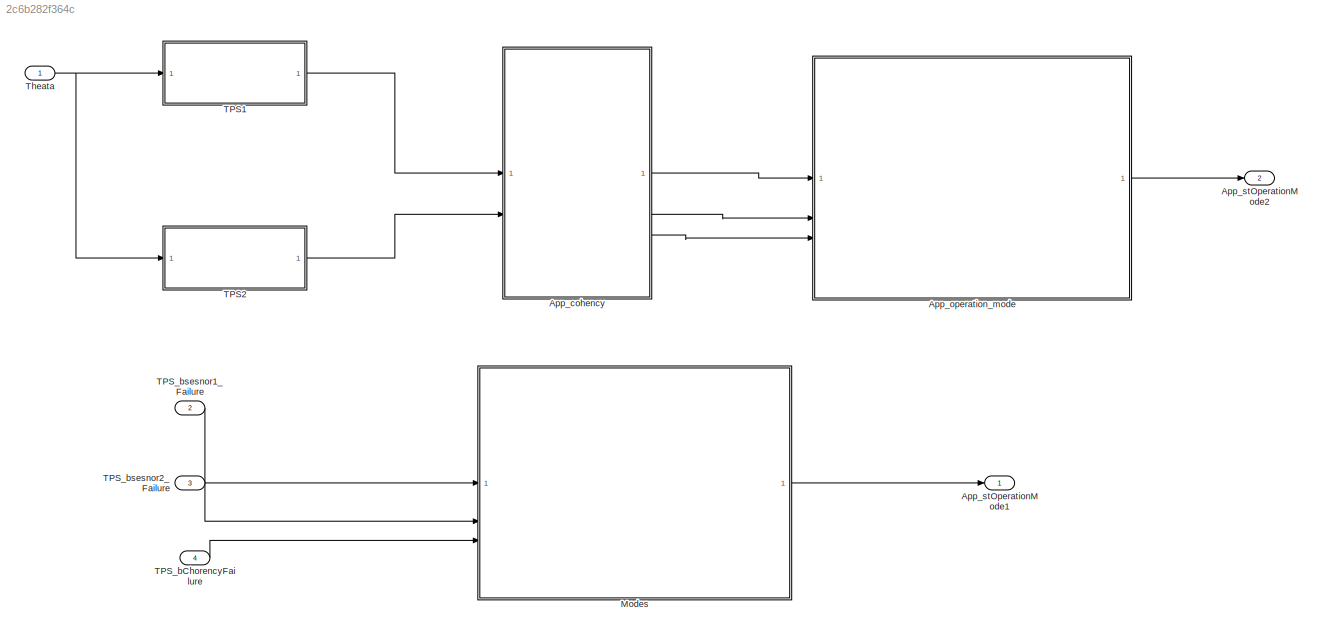
MODEL slx_2c6b282f364c
KIND model
CONFIG AbsTol = auto
CONFIG EnableMultiTasking = on
CONFIG FixedStep = 0.01
CONFIG MaxStep = auto
CONFIG MinStep = auto
CONFIG RelTol = 1e-3
CONFIG SampleTimeConstraint = Unconstrained
CONFIG SolverName = FixedStepAuto
CONFIG StartTime = 0.0
CONFIG StopTime = 10.0
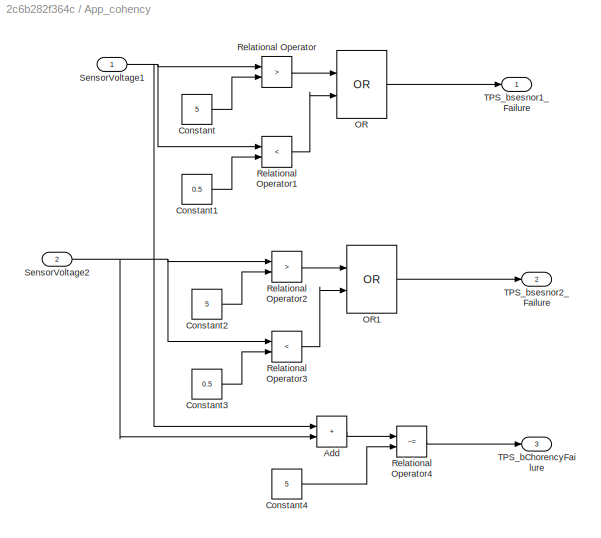
BLOCK [SubSystem] App_cohency
BLOCK [Sum] App_cohency/Add
  IconShape = rectangular
BLOCK [Constant] App_cohency/Constant
  Value = 5
BLOCK [Constant] App_cohency/Constant1
  Value = 0.5
BLOCK [Constant] App_cohency/Constant2
  Value = 5
BLOCK [Constant] App_cohency/Constant3
  Value = 0.5
BLOCK [Constant] App_cohency/Constant4
  Value = 5
BLOCK [Logic] App_cohency/OR
  AllPortsSameDT = off
  IconShape = distinctive
  Operator = OR
  OutDataTypeStr = boolean
BLOCK [Logic] App_cohency/OR1
  AllPortsSameDT = off
  IconShape = distinctive
  Operator = OR
  OutDataTypeStr = boolean
BLOCK [RelationalOperator] App_cohency/Relational Operator
  InputSameDT = off
  Operator = >
  OutDataTypeStr = boolean
  RndMeth = Simplest
BLOCK [RelationalOperator] App_cohency/Relational Operator1
  InputSameDT = off
  Operator = <
  OutDataTypeStr = boolean
  RndMeth = Simplest
BLOCK [RelationalOperator] App_cohency/Relational Operator2
  InputSameDT = off
  Operator = >
  OutDataTypeStr = boolean
  RndMeth = Simplest
BLOCK [RelationalOperator] App_cohency/Relational Operator3
  InputSameDT = off
  Operator = <
  OutDataTypeStr = boolean
  RndMeth = Simplest
BLOCK [RelationalOperator] App_cohency/Relational Operator4
  InputSameDT = off
  Operator = ~=
  OutDataTypeStr = boolean
  RndMeth = Simplest
BLOCK [Inport] App_cohency/SensorVoltage1
BLOCK [Inport] App_cohency/SensorVoltage2
  Port = 2
BLOCK [Outport] App_cohency/TPS_bChorencyFailure
  Port = 3
BLOCK [Outport] App_cohency/TPS_bsesnor1_Failure
BLOCK [Outport] App_cohency/TPS_bsesnor2_Failure
  Port = 2
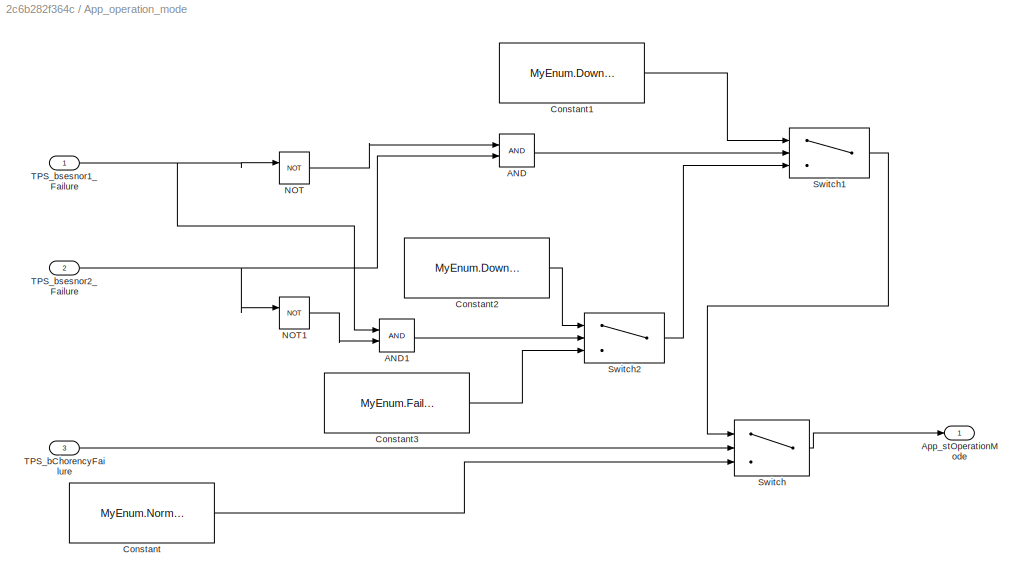
BLOCK [SubSystem] App_operation_mode
BLOCK [Logic] App_operation_mode/AND
  AllPortsSameDT = off
  OutDataTypeStr = boolean
BLOCK [Logic] App_operation_mode/AND1
  AllPortsSameDT = off
  OutDataTypeStr = boolean
BLOCK [Outport] App_operation_mode/App_stOperationMode
  OutDataTypeStr = Enum: MyEnum
BLOCK [Constant] App_operation_mode/Constant
  Value = MyEnum.Normal
BLOCK [Constant] App_operation_mode/Constant1
  Value = MyEnum.DowngradedS1
BLOCK [Constant] App_operation_mode/Constant2
  Value = MyEnum.DowngradedS2
BLOCK [Constant] App_operation_mode/Constant3
  Value = MyEnum.Failure
BLOCK [Logic] App_operation_mode/NOT
  AllPortsSameDT = off
  IconShape = distinctive
  Operator = NOT
  OutDataTypeStr = boolean
BLOCK [Logic] App_operation_mode/NOT1
  AllPortsSameDT = off
  IconShape = distinctive
  Operator = NOT
  OutDataTypeStr = boolean
BLOCK [Switch] App_operation_mode/Switch
  Criteria = u2 ~= 0
  InputSameDT = off
  SaturateOnIntegerOverflow = off
BLOCK [Switch] App_operation_mode/Switch1
  Criteria = u2 ~= 0
  InputSameDT = off
  SaturateOnIntegerOverflow = off
BLOCK [Switch] App_operation_mode/Switch2
  Criteria = u2 ~= 0
  InputSameDT = off
  SaturateOnIntegerOverflow = off
BLOCK [Inport] App_operation_mode/TPS_bChorencyFailure
  Port = 3
BLOCK [Inport] App_operation_mode/TPS_bsesnor1_Failure
BLOCK [Inport] App_operation_mode/TPS_bsesnor2_Failure
  Port = 2
BLOCK [Outport] App_stOperationMode1
BLOCK [Outport] App_stOperationMode2
  Port = 2
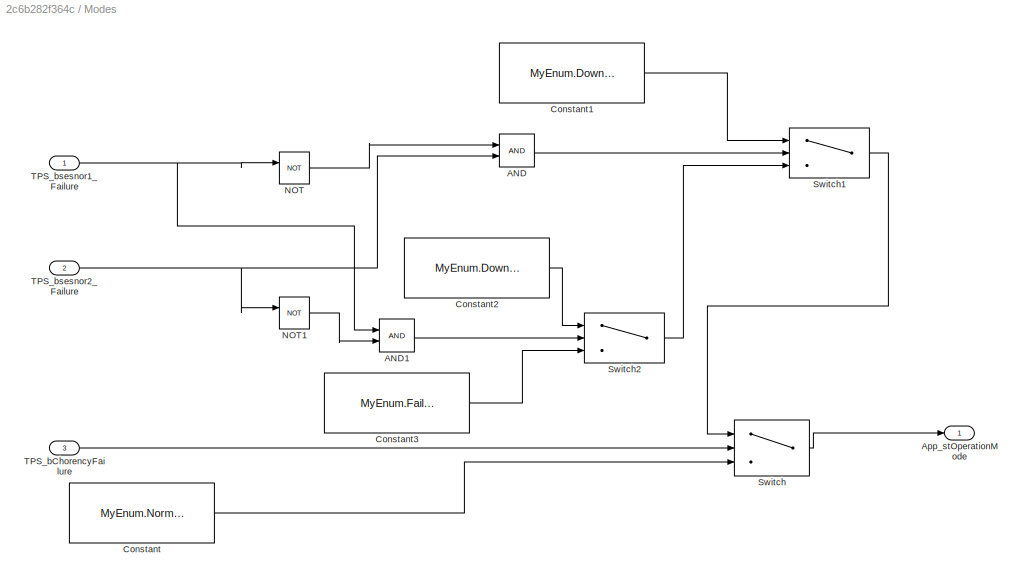
BLOCK [SubSystem] Modes
BLOCK [Logic] Modes/AND
  AllPortsSameDT = off
  OutDataTypeStr = boolean
BLOCK [Logic] Modes/AND1
  AllPortsSameDT = off
  OutDataTypeStr = boolean
BLOCK [Outport] Modes/App_stOperationMode
  OutDataTypeStr = Enum: MyEnum
BLOCK [Constant] Modes/Constant
  Value = MyEnum.Normal
BLOCK [Constant] Modes/Constant1
  Value = MyEnum.DowngradedS1
BLOCK [Constant] Modes/Constant2
  Value = MyEnum.DowngradedS2
BLOCK [Constant] Modes/Constant3
  Value = MyEnum.Failure
BLOCK [Logic] Modes/NOT
  AllPortsSameDT = off
  IconShape = distinctive
  Operator = NOT
  OutDataTypeStr = boolean
BLOCK [Logic] Modes/NOT1
  AllPortsSameDT = off
  IconShape = distinctive
  Operator = NOT
  OutDataTypeStr = boolean
BLOCK [Switch] Modes/Switch
  Criteria = u2 ~= 0
  InputSameDT = off
  SaturateOnIntegerOverflow = off
BLOCK [Switch] Modes/Switch1
  Criteria = u2 ~= 0
  InputSameDT = off
  SaturateOnIntegerOverflow = off
BLOCK [Switch] Modes/Switch2
  Criteria = u2 ~= 0
  InputSameDT = off
  SaturateOnIntegerOverflow = off
BLOCK [Inport] Modes/TPS_bChorencyFailure
  Port = 3
BLOCK [Inport] Modes/TPS_bsesnor1_Failure
BLOCK [Inport] Modes/TPS_bsesnor2_Failure
  Port = 2
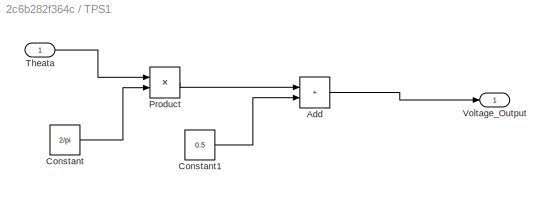
BLOCK [SubSystem] TPS1
BLOCK [Sum] TPS1/Add
  IconShape = rectangular
BLOCK [Constant] TPS1/Constant
  Value = 2/pi
BLOCK [Constant] TPS1/Constant1
  Value = 0.5
BLOCK [Product] TPS1/Product
BLOCK [Inport] TPS1/Theata
BLOCK [Outport] TPS1/Voltage_Output
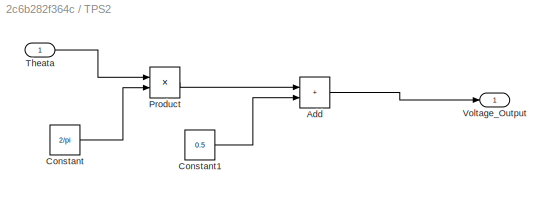
BLOCK [SubSystem] TPS2
BLOCK [Sum] TPS2/Add
  IconShape = rectangular
BLOCK [Constant] TPS2/Constant
  Value = 2/pi
BLOCK [Constant] TPS2/Constant1
  Value = 0.5
BLOCK [Product] TPS2/Product
BLOCK [Inport] TPS2/Theata
BLOCK [Outport] TPS2/Voltage_Output
BLOCK [Inport] TPS_bChorencyFailure
  Port = 4
BLOCK [Inport] TPS_bsesnor1_Failure
  Port = 2
BLOCK [Inport] TPS_bsesnor2_Failure
  Port = 3
BLOCK [Inport] Theata
LINE App_cohency/Add:1 -> App_cohency/Relational Operator4:1
LINE App_cohency/Constant1:1 -> App_cohency/Relational Operator1:2
LINE App_cohency/Constant2:1 -> App_cohency/Relational Operator2:2
LINE App_cohency/Constant3:1 -> App_cohency/Relational Operator3:2
LINE App_cohency/Constant4:1 -> App_cohency/Relational Operator4:2
LINE App_cohency/Constant:1 -> App_cohency/Relational Operator:2
LINE App_cohency/OR1:1 -> App_cohency/TPS_bsesnor2_Failure:1
LINE App_cohency/OR:1 -> App_cohency/TPS_bsesnor1_Failure:1
LINE App_cohency/Relational Operator1:1 -> App_cohency/OR:2
LINE App_cohency/Relational Operator2:1 -> App_cohency/OR1:1
LINE App_cohency/Relational Operator3:1 -> App_cohency/OR1:2
LINE App_cohency/Relational Operator4:1 -> App_cohency/TPS_bChorencyFailure:1
LINE App_cohency/Relational Operator:1 -> App_cohency/OR:1
NET App_cohency/SensorVoltage1:1 -> App_cohency/Add:1, App_cohency/Relational Operator1:1, App_cohency/Relational Operator:1
NET App_cohency/SensorVoltage2:1 -> App_cohency/Add:2, App_cohency/Relational Operator2:1, App_cohency/Relational Operator3:1
LINE App_cohency:1 -> App_operation_mode:1
LINE App_cohency:2 -> App_operation_mode:2
LINE App_cohency:3 -> App_operation_mode:3
LINE App_operation_mode/AND1:1 -> App_operation_mode/Switch2:2
LINE App_operation_mode/AND:1 -> App_operation_mode/Switch1:2
LINE App_operation_mode/Constant1:1 -> App_operation_mode/Switch1:1
LINE App_operation_mode/Constant2:1 -> App_operation_mode/Switch2:1
LINE App_operation_mode/Constant3:1 -> App_operation_mode/Switch2:3
LINE App_operation_mode/Constant:1 -> App_operation_mode/Switch:3
LINE App_operation_mode/NOT1:1 -> App_operation_mode/AND1:2
LINE App_operation_mode/NOT:1 -> App_operation_mode/AND:1
LINE App_operation_mode/Switch1:1 -> App_operation_mode/Switch:1
LINE App_operation_mode/Switch2:1 -> App_operation_mode/Switch1:3
LINE App_operation_mode/Switch:1 -> App_operation_mode/App_stOperationMode:1
LINE App_operation_mode/TPS_bChorencyFailure:1 -> App_operation_mode/Switch:2
NET App_operation_mode/TPS_bsesnor1_Failure:1 -> App_operation_mode/AND1:1, App_operation_mode/NOT:1
NET App_operation_mode/TPS_bsesnor2_Failure:1 -> App_operation_mode/AND:2, App_operation_mode/NOT1:1
LINE App_operation_mode:1 -> App_stOperationMode2:1
LINE Modes/AND1:1 -> Modes/Switch2:2
LINE Modes/AND:1 -> Modes/Switch1:2
LINE Modes/Constant1:1 -> Modes/Switch1:1
LINE Modes/Constant2:1 -> Modes/Switch2:1
LINE Modes/Constant3:1 -> Modes/Switch2:3
LINE Modes/Constant:1 -> Modes/Switch:3
LINE Modes/NOT1:1 -> Modes/AND1:2
LINE Modes/NOT:1 -> Modes/AND:1
LINE Modes/Switch1:1 -> Modes/Switch:1
LINE Modes/Switch2:1 -> Modes/Switch1:3
LINE Modes/Switch:1 -> Modes/App_stOperationMode:1
LINE Modes/TPS_bChorencyFailure:1 -> Modes/Switch:2
NET Modes/TPS_bsesnor1_Failure:1 -> Modes/AND1:1, Modes/NOT:1
NET Modes/TPS_bsesnor2_Failure:1 -> Modes/AND:2, Modes/NOT1:1
LINE Modes:1 -> App_stOperationMode1:1
LINE TPS1/Add:1 -> TPS1/Voltage_Output:1
LINE TPS1/Constant1:1 -> TPS1/Add:2
LINE TPS1/Constant:1 -> TPS1/Product:2
LINE TPS1/Product:1 -> TPS1/Add:1
LINE TPS1/Theata:1 -> TPS1/Product:1
LINE TPS1:1 -> App_cohency:1
LINE TPS2/Add:1 -> TPS2/Voltage_Output:1
LINE TPS2/Constant1:1 -> TPS2/Add:2
LINE TPS2/Constant:1 -> TPS2/Product:2
LINE TPS2/Product:1 -> TPS2/Add:1
LINE TPS2/Theata:1 -> TPS2/Product:1
LINE TPS2:1 -> App_cohency:2
LINE TPS_bChorencyFailure:1 -> Modes:3
LINE TPS_bsesnor1_Failure:1 -> Modes:1
LINE TPS_bsesnor2_Failure:1 -> Modes:2
NET Theata:1 -> TPS1:1, TPS2:1
note: NET lines group one-source signal fan-out (src -> all destinations, sorted); 1:1 wires keep LINE
